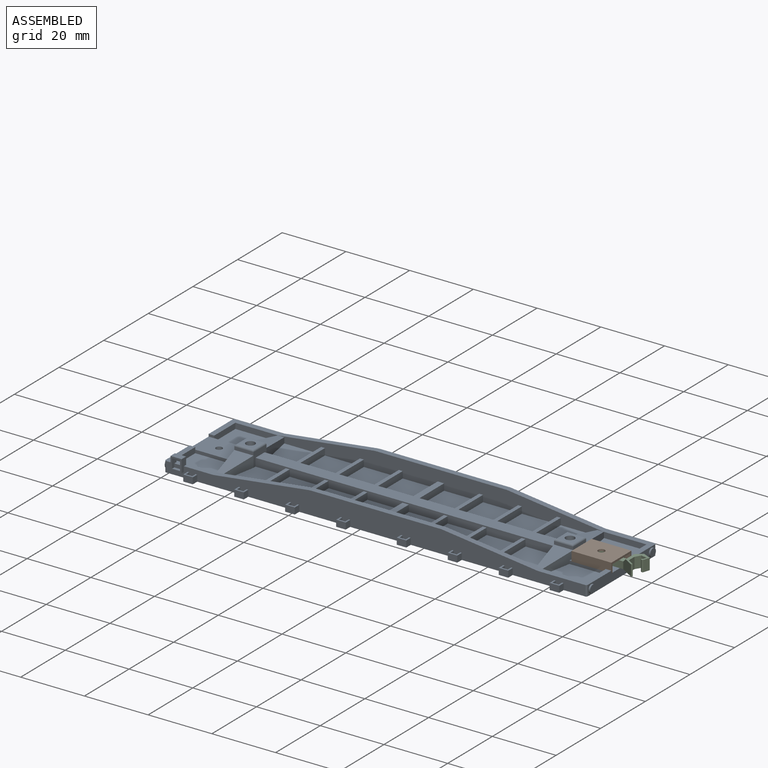
[diagram: assembled view]
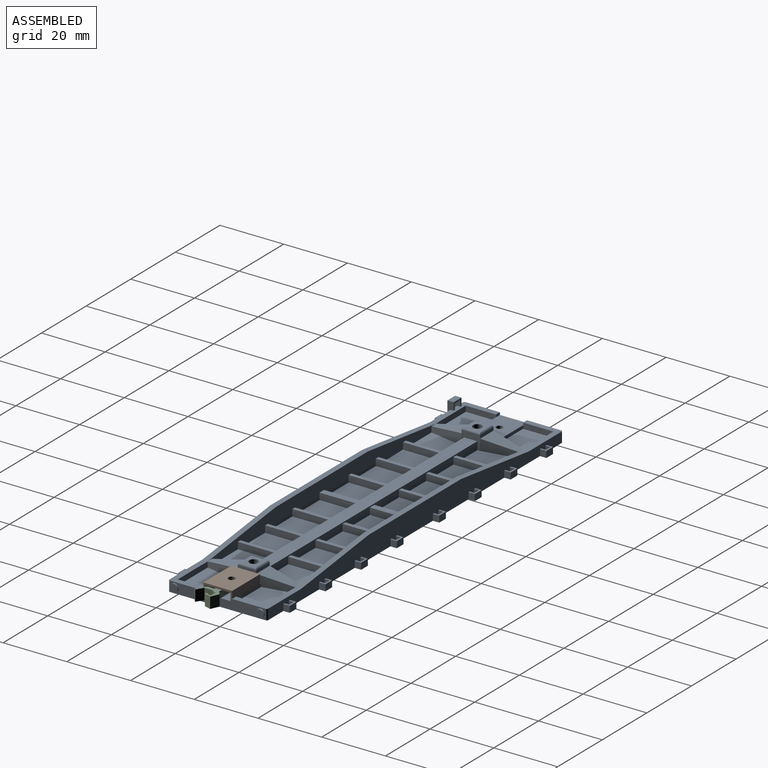
[diagram: assembled view, second angle]
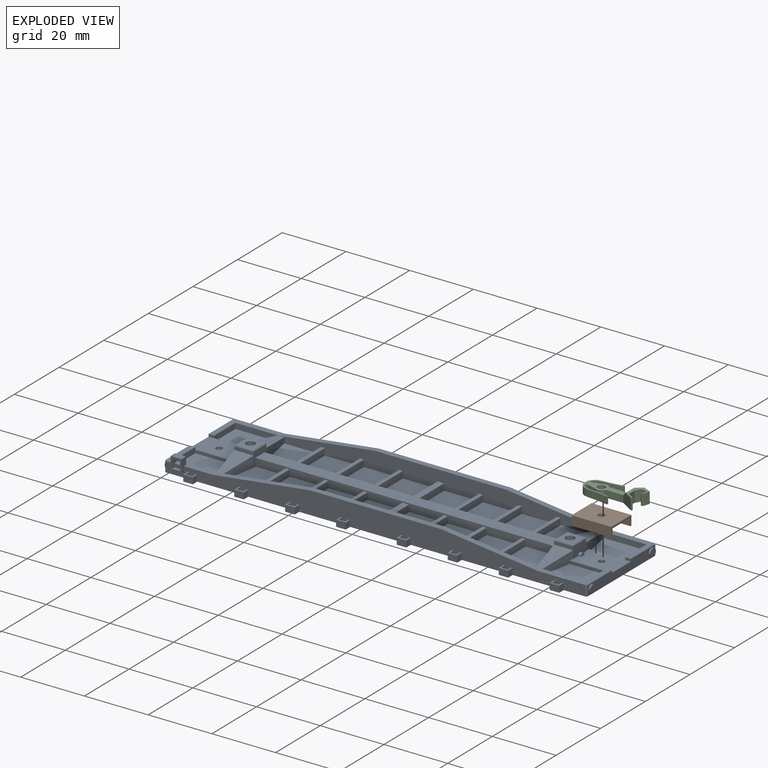
[diagram: exploded view]
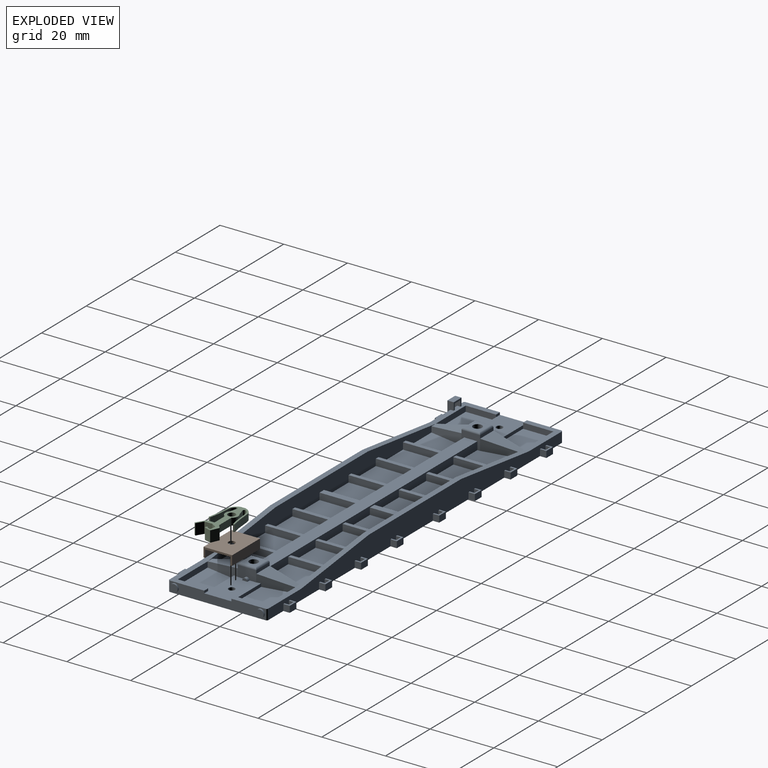
[diagram: exploded view, second angle]
ASSEMBLY  parts=3 mates=2
PART A: 281 faces, bbox 133.5x35x7 mm
  f0: plane 2.5x1.13mm, normal (0,-1,0), area 2.8mm2, adj f1,f272,f275,f276
  f1: plane 14.68x11.25mm, normal (0,0,1), area 41.3mm2, adj f0,f3,f10,f22,f25,f27,f244,f248
  f2: plane 5.83x3.4mm, normal (1,0,0), area 18.8mm2, adj f5,f63,f64,f65,f119,f251,f258
  f3: plane 131.5x7mm, normal (0,-1,0), area 674.2mm2, adj f1,f16,f20,f60,f115,f118,f183,f185
  f4: plane 131.5x7mm, normal (0,1,0), area 679.9mm2, adj f14,f20,f23,f55,f116,f117,f127,f129
  f5: plane 10.84x3.45mm, normal (0.98,-0.18,0), area 27.3mm2, adj f2,f15,f58,f61,f63,f125
  f6: plane 10.84x3.45mm, normal (-0.98,-0.18,0), area 28.7mm2, adj f9,f42,f50,f125
  f7: plane 10.84x3.45mm, normal (-0.98,0.18,0), area 27.3mm2, adj f12,f19,f24,f30,f31,f124
  f8: plane 10.84x3.45mm, normal (0.98,0.18,0), area 28.7mm2, adj f11,f32,f69,f124
  f9: plane 103.13x5.5mm, normal (0,1,0), area 421.2mm2, adj f6,f10,f15,f16,f41,f42,f43,f44
  f10: plane 13.35x1.75mm, normal (0,1,0), area 23.4mm2, adj f1,f9,f26,f27,f121
  f11: plane 103.13x5.5mm, normal (0,-1,0), area 421.2mm2, adj f8,f12,f13,f14,f32,f34,f35,f36
  f12: plane 13.35x1.75mm, normal (0,-1,0), area 23.4mm2, adj f7,f11,f19,f21,f23
  f13: plane 13.35x1.75mm, normal (0,-1,0), area 23.4mm2, adj f11,f52,f53,f55,f119
  f14: plane 40.7x1.75mm, normal (0,0,1), area 71.2mm2, adj f4,f11,f117,f239
  f15: plane 13.35x1.75mm, normal (0,1,0), area 23.4mm2, adj f5,f9,f58,f59,f60
  f16: plane 40.7x1.75mm, normal (0,0,1), area 71.2mm2, adj f3,f9,f118,f240
  f17: plane 94.3x2.5mm, normal (0,-1,0), area 216.4mm2, adj f41,f42,f43,f44,f45,f46,f47,f48
  f18: plane 1.75x0.75mm, normal (0,-1,0), area 1.3mm2, adj f21,f22,f23,f30
  f19: plane 13.35x9.5mm, normal (0,0,1), area 118.5mm2, adj f7,f12,f21,f24
  f20: plane 132.5x35mm, normal (0,0,-1), area 4149mm2, adj f3,f4,f22,f29,f54,f62,f127,f128
  f21: plane 9.5x1.75mm, normal (1,0,0), area 16.6mm2, adj f12,f18,f19,f23,f24
  f22: plane 30x3.25mm, normal (-1,0,0), area 81.3mm2, adj f1,f18,f20,f23,f25,f30,f247,f248
  f23: plane 14.68x11.25mm, normal (0,0,1), area 42.3mm2, adj f4,f12,f18,f21,f22,f243,f247
  f24: plane 11.6x1mm, normal (0,1,0), area 11.6mm2, adj f7,f19,f21,f30
  f25: plane 1.75x0.75mm, normal (0,1,0), area 1.3mm2, adj f1,f22,f27,f30
  f26: plane 13.35x9.5mm, normal (0,0,1), area 118.5mm2, adj f10,f27,f28,f121
  f27: plane 9.5x1.75mm, normal (1,0,0), area 16.6mm2, adj f1,f10,f25,f26,f28
  f28: plane 11.6x1mm, normal (0,-1,0), area 11.6mm2, adj f26,f27,f30,f121
  f29: cylinder r=1mm len=2.5mm, axis (0,0,-1), area 15.7mm2, adj f20,f30
  f30: plane 13.35x8.5mm, normal (0,0,1), area 106.9mm2, adj f7,f18,f22,f24,f25,f28,f29,f31
  f31: plane 5.83x3.4mm, normal (-1,0,0), area 18.8mm2, adj f7,f30,f68,f70,f121,f249,f262
  f32: plane 11.7x11.55mm, normal (0,0,1), area 122.6mm2, adj f8,f11,f33,f69,f76
  f33: plane 94.3x2.5mm, normal (0,1,0), area 216.4mm2, adj f32,f34,f35,f36,f37,f38,f39,f40
  f34: plane 11.7x11mm, normal (0,0,1), area 128.7mm2, adj f11,f33,f73,f77
  f35: plane 11.7x11mm, normal (0,0,1), area 128.7mm2, adj f11,f33,f74,f80
  f36: plane 11.7x11mm, normal (0,0,1), area 128.7mm2, adj f11,f33,f79,f83
  f37: plane 11.7x11.55mm, normal (0,0,1), area 122.6mm2, adj f11,f33,f50,f91,f120
  f38: plane 11.7x11mm, normal (0,0,1), area 128.7mm2, adj f11,f33,f82,f86
  f39: plane 11.7x11mm, normal (0,0,1), area 128.7mm2, adj f11,f33,f85,f89
  f40: plane 11.7x11mm, normal (0,0,1), area 128.7mm2, adj f11,f33,f88,f92
  f41: plane 11.7x11.55mm, normal (0,0,1), area 122.6mm2, adj f9,f17,f69,f112,f122
  f42: plane 11.7x11.55mm, normal (0,0,1), area 122.6mm2, adj f6,f9,f17,f50,f106
  f43: plane 11.7x11mm, normal (0,0,1), area 128.7mm2, adj f9,f17,f103,f107
  f44: plane 11.7x11mm, normal (0,0,1), area 128.7mm2, adj f9,f17,f100,f104
  f45: plane 11.7x11mm, normal (0,0,1), area 128.7mm2, adj f9,f17,f109,f113
  f46: plane 11.7x11mm, normal (0,0,1), area 128.7mm2, adj f9,f17,f97,f110
  f47: plane 11.7x11mm, normal (0,0,1), area 128.7mm2, adj f9,f17,f94,f101
  f48: plane 11.7x11mm, normal (0,0,1), area 128.7mm2, adj f9,f17,f95,f98
  f49: plane 94.3x4.1mm, normal (0,0,1), area 386.6mm2, adj f17,f33,f50,f69
  f50: plane 5.83x4.4mm, normal (-1,0,0), area 15.4mm2, adj f6,f17,f33,f37,f42,f49,f64,f65
  f51: plane 1.75x0.75mm, normal (0,-1,0), area 1.3mm2, adj f53,f54,f55,f63
  f52: plane 13.35x9.5mm, normal (0,0,1), area 118.5mm2, adj f13,f53,f56,f119
  f53: plane 9.5x1.75mm, normal (-1,0,0), area 16.6mm2, adj f13,f51,f52,f55,f56
  f54: plane 30x3.25mm, normal (1,0,0), area 81.3mm2, adj f20,f51,f55,f57,f60,f63,f245,f246
  f55: plane 14.68x11.25mm, normal (0,0,1), area 42.3mm2, adj f4,f13,f51,f53,f54,f242,f246
  f56: plane 11.6x1mm, normal (0,1,0), area 11.6mm2, adj f52,f53,f63,f119
  f57: plane 1.75x0.75mm, normal (0,1,0), area 1.3mm2, adj f54,f59,f60,f63
  f58: plane 13.35x9.5mm, normal (0,0,1), area 118.5mm2, adj f5,f15,f59,f61
  f59: plane 9.5x1.75mm, normal (-1,0,0), area 16.6mm2, adj f15,f57,f58,f60,f61
  f60: plane 14.68x11.25mm, normal (0,0,1), area 42.3mm2, adj f3,f15,f54,f57,f59,f241,f245
  f61: plane 11.6x1mm, normal (0,-1,0), area 11.6mm2, adj f5,f58,f59,f63
  f62: cylinder r=1mm len=2.5mm, axis (0,0,-1), area 15.7mm2, adj f20,f63
  f63: plane 13.35x8.5mm, normal (0,0,1), area 106.9mm2, adj f2,f5,f51,f54,f56,f57,f61,f62
  f64: plane 6x0.95mm, normal (0,-1,0), area 5.7mm2, adj f2,f50,f125,f257
  f65: plane 6x0.95mm, normal (0,1,0), area 5.7mm2, adj f2,f50,f126,f256
  f66: cylinder r=1.4mm len=5.5mm, axis (0,0,-1), area 48.4mm2, adj f67,f254
  f67: plane 4.8x4.63mm, normal (0,0,1), area 16.1mm2, adj f66,f255,f256,f257,f258
  f68: plane 6x0.95mm, normal (0,-1,0), area 5.7mm2, adj f31,f69,f123,f261
  f69: plane 5.83x4.4mm, normal (1,0,0), area 15.4mm2, adj f8,f17,f32,f33,f41,f49,f68,f70
  f70: plane 6x0.95mm, normal (0,1,0), area 5.7mm2, adj f31,f69,f124,f260
  f71: cylinder r=1.4mm len=5.5mm, axis (0,0,-1), area 48.4mm2, adj f72,f253
  f72: plane 4.8x4.63mm, normal (0,0,1), area 16.1mm2, adj f71,f259,f260,f261,f262
  f73: plane 11.7x2.1mm, normal (-1,0,0), area 24.6mm2, adj f11,f33,f34,f75
  f74: plane 11.7x2.1mm, normal (1,0,0), area 24.6mm2, adj f11,f33,f35,f75
  f75: plane 11.7x1.2mm, normal (0,0,1), area 14mm2, adj f11,f33,f73,f74
  f76: plane 11.7x2.1mm, normal (-1,0,0), area 24.6mm2, adj f11,f32,f33,f78
  f77: plane 11.7x2.1mm, normal (1,0,0), area 24.6mm2, adj f11,f33,f34,f78
  f78: plane 11.7x1.2mm, normal (0,0,1), area 14mm2, adj f11,f33,f76,f77
  f79: plane 11.7x2.1mm, normal (1,0,0), area 24.6mm2, adj f11,f33,f36,f81
  f80: plane 11.7x2.1mm, normal (-1,0,0), area 24.6mm2, adj f11,f33,f35,f81
  f81: plane 11.7x1.2mm, normal (0,0,1), area 14mm2, adj f11,f33,f79,f80
  f82: plane 11.7x2.1mm, normal (1,0,0), area 24.6mm2, adj f11,f33,f38,f84
  f83: plane 11.7x2.1mm, normal (-1,0,0), area 24.6mm2, adj f11,f33,f36,f84
  f84: plane 11.7x2mm, normal (0,0,1), area 23.4mm2, adj f11,f33,f82,f83
  f85: plane 11.7x2.1mm, normal (1,0,0), area 24.6mm2, adj f11,f33,f39,f87
  f86: plane 11.7x2.1mm, normal (-1,0,0), area 24.6mm2, adj f11,f33,f38,f87
  f87: plane 11.7x1.2mm, normal (0,0,1), area 14mm2, adj f11,f33,f85,f86
  f88: plane 11.7x2.1mm, normal (1,0,0), area 24.6mm2, adj f11,f33,f40,f90
  f89: plane 11.7x2.1mm, normal (-1,0,0), area 24.6mm2, adj f11,f33,f39,f90
  f90: plane 11.7x1.2mm, normal (0,0,1), area 14mm2, adj f11,f33,f88,f89
  f91: plane 11.7x2.1mm, normal (1,0,0), area 24.6mm2, adj f11,f33,f37,f93
  f92: plane 11.7x2.1mm, normal (-1,0,0), area 24.6mm2, adj f11,f33,f40,f93
  f93: plane 11.7x1.2mm, normal (0,0,1), area 14mm2, adj f11,f33,f91,f92
  f94: plane 11.7x2.1mm, normal (1,0,0), area 24.6mm2, adj f9,f17,f47,f96
  f95: plane 11.7x2.1mm, normal (-1,0,0), area 24.6mm2, adj f9,f17,f48,f96
  f96: plane 11.7x2mm, normal (0,0,1), area 23.4mm2, adj f9,f17,f94,f95
  f97: plane 11.7x2.1mm, normal (-1,0,0), area 24.6mm2, adj f9,f17,f46,f99
  f98: plane 11.7x2.1mm, normal (1,0,0), area 24.6mm2, adj f9,f17,f48,f99
  f99: plane 11.7x1.2mm, normal (0,0,1), area 14mm2, adj f9,f17,f97,f98
  f100: plane 11.7x2.1mm, normal (1,0,0), area 24.6mm2, adj f9,f17,f44,f102
  f101: plane 11.7x2.1mm, normal (-1,0,0), area 24.6mm2, adj f9,f17,f47,f102
  f102: plane 11.7x1.2mm, normal (0,0,1), area 14mm2, adj f9,f17,f100,f101
  f103: plane 11.7x2.1mm, normal (1,0,0), area 24.6mm2, adj f9,f17,f43,f105
  f104: plane 11.7x2.1mm, normal (-1,0,0), area 24.6mm2, adj f9,f17,f44,f105
  f105: plane 11.7x1.2mm, normal (0,0,1), area 14mm2, adj f9,f17,f103,f104
  f106: plane 11.7x2.1mm, normal (1,0,0), area 24.6mm2, adj f9,f17,f42,f108
  f107: plane 11.7x2.1mm, normal (-1,0,0), area 24.6mm2, adj f9,f17,f43,f108
  f108: plane 11.7x1.2mm, normal (0,0,1), area 14mm2, adj f9,f17,f106,f107
  f109: plane 11.7x2.1mm, normal (-1,0,0), area 24.6mm2, adj f9,f17,f45,f111
  f110: plane 11.7x2.1mm, normal (1,0,0), area 24.6mm2, adj f9,f17,f46,f111
  f111: plane 11.7x1.2mm, normal (0,0,1), area 14mm2, adj f9,f17,f109,f110
  f112: plane 11.7x2.1mm, normal (-1,0,0), area 24.6mm2, adj f9,f17,f41,f114
  f113: plane 11.7x2.1mm, normal (1,0,0), area 24.6mm2, adj f9,f17,f45,f114
  f114: plane 11.7x1.2mm, normal (0,0,1), area 14mm2, adj f9,f17,f112,f113
  f115: plane 29.06x3.6mm, normal (-0.12,0,0.99), area 51.2mm2, adj f3,f9,f240,f244
  f116: plane 29.06x3.6mm, normal (-0.12,0,0.99), area 51.2mm2, adj f4,f11,f239,f243
  f117: plane 29.69x3.67mm, normal (0.12,0,0.99), area 52.4mm2, adj f4,f11,f14,f242
  f118: plane 29.69x3.67mm, normal (0.12,0,0.99), area 52.4mm2, adj f3,f9,f16,f241
  f119: plane 10.84x3.45mm, normal (0.98,0.18,0), area 27.3mm2, adj f2,f13,f52,f56,f63,f126
  f120: plane 10.84x3.45mm, normal (-0.98,0.18,0), area 28.7mm2, adj f11,f37,f50,f126
  f121: plane 10.84x3.45mm, normal (-0.98,-0.18,0), area 27.3mm2, adj f10,f26,f28,f30,f31,f123
  f122: plane 10.84x3.45mm, normal (0.98,-0.18,0), area 28.7mm2, adj f9,f41,f69,f123
  f123: plane 10.84x6mm, normal (0,-0.16,0.99), area 43.9mm2, adj f9,f68,f121,f122
  f124: plane 10.84x6mm, normal (0,0.16,0.99), area 43.9mm2, adj f7,f8,f11,f70
  f125: plane 10.84x6mm, normal (0,-0.16,0.99), area 43.9mm2, adj f5,f6,f9,f64
  f126: plane 10.84x6mm, normal (0,0.16,0.99), area 43.9mm2, adj f11,f65,f119,f120
  f127: plane 2x1.5mm, normal (1,0,0), area 3mm2, adj f4,f20,f128,f133
  f128: plane 2x2mm, normal (0,-1,0), area 4mm2, adj f20,f127,f129,f133
  f129: plane 2x1.5mm, normal (-1,0,0), area 3mm2, adj f4,f20,f128,f133
  f130: plane 2x2mm, normal (1,0,0), area 4mm2, adj f4,f20,f131,f133
  f131: plane 3x2mm, normal (0,1,0), area 6mm2, adj f20,f130,f132,f133
  f132: plane 2x2mm, normal (-1,0,0), area 4mm2, adj f4,f20,f131,f133
  f133: plane 3x2mm, normal (0,0,1), area 3mm2, adj f4,f127,f128,f129,f130,f131,f132
  f134: plane 2x1.5mm, normal (1,0,0), area 3mm2, adj f4,f20,f135,f140
  f135: plane 2x2mm, normal (0,-1,0), area 4mm2, adj f20,f134,f136,f140
  f136: plane 2x1.5mm, normal (-1,0,0), area 3mm2, adj f4,f20,f135,f140
  f137: plane 2x2mm, normal (1,0,0), area 4mm2, adj f4,f20,f138,f140
  f138: plane 3x2mm, normal (0,1,0), area 6mm2, adj f20,f137,f139,f140
  f139: plane 2x2mm, normal (-1,0,0), area 4mm2, adj f4,f20,f138,f140
  f140: plane 3x2mm, normal (0,0,1), area 3mm2, adj f4,f134,f135,f136,f137,f138,f139
  f141: plane 2x1.5mm, normal (1,0,0), area 3mm2, adj f4,f20,f142,f147
  f142: plane 2x2mm, normal (0,-1,0), area 4mm2, adj f20,f141,f143,f147
  f143: plane 2x1.5mm, normal (-1,0,0), area 3mm2, adj f4,f20,f142,f147
  f144: plane 2x2mm, normal (1,0,0), area 4mm2, adj f4,f20,f145,f147
  f145: plane 3x2mm, normal (0,1,0), area 6mm2, adj f20,f144,f146,f147
  f146: plane 2x2mm, normal (-1,0,0), area 4mm2, adj f4,f20,f145,f147
  f147: plane 3x2mm, normal (0,0,1), area 3mm2, adj f4,f141,f142,f143,f144,f145,f146
  f148: plane 2x1.5mm, normal (1,0,0), area 3mm2, adj f4,f20,f149,f154
  f149: plane 2x2mm, normal (0,-1,0), area 4mm2, adj f20,f148,f150,f154
  f150: plane 2x1.5mm, normal (-1,0,0), area 3mm2, adj f4,f20,f149,f154
  f151: plane 2x2mm, normal (1,0,0), area 4mm2, adj f4,f20,f152,f154
  f152: plane 3x2mm, normal (0,1,0), area 6mm2, adj f20,f151,f153,f154
  f153: plane 2x2mm, normal (-1,0,0), area 4mm2, adj f4,f20,f152,f154
  f154: plane 3x2mm, normal (0,0,1), area 3mm2, adj f4,f148,f149,f150,f151,f152,f153
  f155: plane 2x2mm, normal (1,0,0), area 4mm2, adj f4,f20,f156,f161
  f156: plane 3x2mm, normal (0,1,0), area 6mm2, adj f20,f155,f157,f161
  f157: plane 2x2mm, normal (-1,0,0), area 4mm2, adj f4,f20,f156,f161
  f158: plane 2x1.5mm, normal (1,0,0), area 3mm2, adj f4,f20,f159,f161
  f159: plane 2x2mm, normal (0,-1,0), area 4mm2, adj f20,f158,f160,f161
  f160: plane 2x1.5mm, normal (-1,0,0), area 3mm2, adj f4,f20,f159,f161
  f161: plane 3x2mm, normal (0,0,1), area 3mm2, adj f4,f155,f156,f157,f158,f159,f160
  f162: plane 2x2mm, normal (1,0,0), area 4mm2, adj f4,f20,f163,f168
  f163: plane 3x2mm, normal (0,1,0), area 6mm2, adj f20,f162,f164,f168
  f164: plane 2x2mm, normal (-1,0,0), area 4mm2, adj f4,f20,f163,f168
  f165: plane 2x1.5mm, normal (1,0,0), area 3mm2, adj f4,f20,f166,f168
  f166: plane 2x2mm, normal (0,-1,0), area 4mm2, adj f20,f165,f167,f168
  f167: plane 2x1.5mm, normal (-1,0,0), area 3mm2, adj f4,f20,f166,f168
  f168: plane 3x2mm, normal (0,0,1), area 3mm2, adj f4,f162,f163,f164,f165,f166,f167
  f169: plane 2x1.5mm, normal (1,0,0), area 3mm2, adj f4,f20,f170,f175
  f170: plane 2x2mm, normal (0,-1,0), area 4mm2, adj f20,f169,f171,f175
  f171: plane 2x1.5mm, normal (-1,0,0), area 3mm2, adj f4,f20,f170,f175
  f172: plane 2x2mm, normal (1,0,0), area 4mm2, adj f4,f20,f173,f175
  f173: plane 3x2mm, normal (0,1,0), area 6mm2, adj f20,f172,f174,f175
  f174: plane 2x2mm, normal (-1,0,0), area 4mm2, adj f4,f20,f173,f175
  f175: plane 3x2mm, normal (0,0,1), area 3mm2, adj f4,f169,f170,f171,f172,f173,f174
  f176: plane 2x1.5mm, normal (1,0,0), area 3mm2, adj f4,f20,f177,f182
  f177: plane 2x2mm, normal (0,-1,0), area 4mm2, adj f20,f176,f178,f182
  f178: plane 2x1.5mm, normal (-1,0,0), area 3mm2, adj f4,f20,f177,f182
  f179: plane 2x2mm, normal (1,0,0), area 4mm2, adj f4,f20,f180,f182
  f180: plane 3x2mm, normal (0,1,0), area 6mm2, adj f20,f179,f181,f182
  f181: plane 2x2mm, normal (-1,0,0), area 4mm2, adj f4,f20,f180,f182
  f182: plane 3x2mm, normal (0,0,1), area 3mm2, adj f4,f176,f177,f178,f179,f180,f181
  f183: plane 2x2mm, normal (-1,0,0), area 4mm2, adj f3,f20,f184,f189
  f184: plane 3x2mm, normal (0,-1,0), area 6mm2, adj f20,f183,f185,f189
  f185: plane 2x2mm, normal (1,0,0), area 4mm2, adj f3,f20,f184,f189
  f186: plane 2x1.5mm, normal (-1,0,0), area 3mm2, adj f3,f20,f187,f189
  f187: plane 2x2mm, normal (0,1,0), area 4mm2, adj f20,f186,f188,f189
  f188: plane 2x1.5mm, normal (1,0,0), area 3mm2, adj f3,f20,f187,f189
  f189: plane 3x2mm, normal (0,0,1), area 3mm2, adj f3,f183,f184,f185,f186,f187,f188
  f190: plane 2x2mm, normal (1,0,0), area 4mm2, adj f3,f20,f195,f196
  f191: plane 2x1.5mm, normal (-1,0,0), area 3mm2, adj f3,f20,f192,f196
  f192: plane 2x2mm, normal (0,1,0), area 4mm2, adj f20,f191,f193,f196
  f193: plane 2x1.5mm, normal (1,0,0), area 3mm2, adj f3,f20,f192,f196
  f194: plane 2x2mm, normal (-1,0,0), area 4mm2, adj f3,f20,f195,f196
  f195: plane 3x2mm, normal (0,-1,0), area 6mm2, adj f20,f190,f194,f196
  f196: plane 3x2mm, normal (0,0,1), area 3mm2, adj f3,f190,f191,f192,f193,f194,f195
  f197: plane 2x2mm, normal (-1,0,0), area 4mm2, adj f3,f20,f198,f203
  f198: plane 3x2mm, normal (0,-1,0), area 6mm2, adj f20,f197,f199,f203
  f199: plane 2x2mm, normal (1,0,0), area 4mm2, adj f3,f20,f198,f203
  f200: plane 2x1.5mm, normal (-1,0,0), area 3mm2, adj f3,f20,f201,f203
  f201: plane 2x2mm, normal (0,1,0), area 4mm2, adj f20,f200,f202,f203
  f202: plane 2x1.5mm, normal (1,0,0), area 3mm2, adj f3,f20,f201,f203
  f203: plane 3x2mm, normal (0,0,1), area 3mm2, adj f3,f197,f198,f199,f200,f201,f202
  f204: plane 2x2mm, normal (-1,0,0), area 4mm2, adj f3,f20,f205,f210
  f205: plane 3x2mm, normal (0,-1,0), area 6mm2, adj f20,f204,f206,f210
  f206: plane 2x2mm, normal (1,0,0), area 4mm2, adj f3,f20,f205,f210
  f207: plane 2x1.5mm, normal (-1,0,0), area 3mm2, adj f3,f20,f208,f210
  f208: plane 2x2mm, normal (0,1,0), area 4mm2, adj f20,f207,f209,f210
  f209: plane 2x1.5mm, normal (1,0,0), area 3mm2, adj f3,f20,f208,f210
  f210: plane 3x2mm, normal (0,0,1), area 3mm2, adj f3,f204,f205,f206,f207,f208,f209
  f211: plane 2x1.5mm, normal (-1,0,0), area 3mm2, adj f3,f20,f212,f217
  f212: plane 2x2mm, normal (0,1,0), area 4mm2, adj f20,f211,f213,f217
  f213: plane 2x1.5mm, normal (1,0,0), area 3mm2, adj f3,f20,f212,f217
  f214: plane 2x2mm, normal (-1,0,0), area 4mm2, adj f3,f20,f215,f217
  f215: plane 3x2mm, normal (0,-1,0), area 6mm2, adj f20,f214,f216,f217
  f216: plane 2x2mm, normal (1,0,0), area 4mm2, adj f3,f20,f215,f217
  f217: plane 3x2mm, normal (0,0,1), area 3mm2, adj f3,f211,f212,f213,f214,f215,f216
  f218: plane 2x1.5mm, normal (-1,0,0), area 3mm2, adj f3,f20,f219,f224
  f219: plane 2x2mm, normal (0,1,0), area 4mm2, adj f20,f218,f220,f224
  f220: plane 2x1.5mm, normal (1,0,0), area 3mm2, adj f3,f20,f219,f224
  f221: plane 2x2mm, normal (-1,0,0), area 4mm2, adj f3,f20,f222,f224
  f222: plane 3x2mm, normal (0,-1,0), area 6mm2, adj f20,f221,f223,f224
  f223: plane 2x2mm, normal (1,0,0), area 4mm2, adj f3,f20,f222,f224
  f224: plane 3x2mm, normal (0,0,1), area 3mm2, adj f3,f218,f219,f220,f221,f222,f223
  f225: plane 2x2mm, normal (0,1,0), area 4mm2, adj f20,f226,f230,f231
  f226: plane 2x1.5mm, normal (1,0,0), area 3mm2, adj f3,f20,f225,f231
  f227: plane 2x2mm, normal (-1,0,0), area 4mm2, adj f3,f20,f228,f231
  f228: plane 3x2mm, normal (0,-1,0), area 6mm2, adj f20,f227,f229,f231
  f229: plane 2x2mm, normal (1,0,0), area 4mm2, adj f3,f20,f228,f231
  f230: plane 2x1.5mm, normal (-1,0,0), area 3mm2, adj f3,f20,f225,f231
  f231: plane 3x2mm, normal (0,0,1), area 3mm2, adj f3,f225,f226,f227,f228,f229,f230
  f232: plane 2x2mm, normal (-1,0,0), area 4mm2, adj f3,f20,f233,f238
  f233: plane 3x2mm, normal (0,-1,0), area 6mm2, adj f20,f232,f234,f238
  f234: plane 2x2mm, normal (1,0,0), area 4mm2, adj f3,f20,f233,f238
  f235: plane 2x1.5mm, normal (-1,0,0), area 3mm2, adj f3,f20,f236,f238
  f236: plane 2x2mm, normal (0,1,0), area 4mm2, adj f20,f235,f237,f238
  f237: plane 2x1.5mm, normal (1,0,0), area 3mm2, adj f3,f20,f236,f238
  f238: plane 3x2mm, normal (0,0,1), area 3mm2, adj f3,f232,f233,f234,f235,f236,f237
  f239: cylinder r=10mm len=1.75mm, axis (0,1,0), area 2.2mm2, adj f4,f11,f14,f116
  f240: cylinder r=10mm len=1.75mm, axis (0,1,0), area 2.2mm2, adj f3,f9,f16,f115
  f241: cylinder r=10mm len=1.75mm, axis (0,-1,0), area 2.2mm2, adj f3,f9,f60,f118
  f242: cylinder r=10mm len=1.75mm, axis (0,-1,0), area 2.2mm2, adj f4,f11,f55,f117
  f243: cylinder r=10mm len=1.75mm, axis (0,1,0), area 2.2mm2, adj f4,f11,f23,f116
  f244: cylinder r=10mm len=1.75mm, axis (0,1,0), area 2.2mm2, adj f1,f3,f9,f115
  f245: cylinder r=0.5mm len=3.25mm, axis (0,0,1), area 2.6mm2, adj f3,f20,f54,f60
  f246: cylinder r=0.5mm len=3.25mm, axis (0,0,1), area 2.6mm2, adj f4,f20,f54,f55
  f247: cylinder r=0.5mm len=3.25mm, axis (0,0,1), area 2.6mm2, adj f4,f20,f22,f23
  f248: cylinder r=0.5mm len=3.25mm, axis (0,0,1), area 2.6mm2, adj f1,f3,f20,f22
  f249: cylinder r=0.8mm len=1.6mm, axis (1,0,0), area 2.5mm2, adj f30,f31,f250
  f250: plane 1.6x0.8mm, normal (-1,0,0), area 1mm2, adj f30,f249
  f251: cylinder r=0.8mm len=1.6mm, axis (-1,0,0), area 2.5mm2, adj f2,f63,f252
  f252: plane 1.6x0.8mm, normal (1,0,0), area 1mm2, adj f63,f251
  f253: plane 2.8x2.8mm, normal (0,0,1), area 6.2mm2, adj f71
  f254: plane 2.8x2.8mm, normal (0,0,1), area 6.2mm2, adj f66
  f255: cylinder r=0.6mm len=5.83mm, axis (0,1,0), area 5.1mm2, adj f50,f67,f256,f257
  f256: cylinder r=0.6mm len=6mm, axis (1,0,0), area 5.2mm2, adj f65,f67,f255,f258
  f257: cylinder r=0.6mm len=6mm, axis (-1,0,0), area 5.2mm2, adj f64,f67,f255,f258
  f258: cylinder r=0.6mm len=5.83mm, axis (0,-1,0), area 5.1mm2, adj f2,f67,f256,f257
  f259: cylinder r=0.6mm len=5.83mm, axis (0,-1,0), area 5.1mm2, adj f69,f72,f260,f261
  f260: cylinder r=0.6mm len=6mm, axis (1,0,0), area 5.2mm2, adj f70,f72,f259,f262
  f261: cylinder r=0.6mm len=6mm, axis (-1,0,0), area 5.2mm2, adj f68,f72,f259,f262
  f262: cylinder r=0.6mm len=5.83mm, axis (0,1,0), area 5.1mm2, adj f31,f72,f260,f261
  f263: cylinder r=1.25mm len=2.5mm, axis (-1,0,0), area 3.9mm2, adj f54,f264
  f264: plane 2.5x2.5mm, normal (1,0,0), area 4.9mm2, adj f263
  f265: cylinder r=1.25mm len=2.5mm, axis (-1,0,0), area 3.9mm2, adj f54,f266
  f266: plane 2.5x2.5mm, normal (1,0,0), area 4.9mm2, adj f265
  f267: cylinder r=1.25mm len=2.5mm, axis (1,0,0), area 3.9mm2, adj f22,f268
  f268: plane 2.5x2.5mm, normal (-1,0,0), area 4.9mm2, adj f267
  f269: cylinder r=1.25mm len=2.5mm, axis (1,0,0), area 3.9mm2, adj f22,f270
  f270: plane 2.5x2.5mm, normal (-1,0,0), area 4.9mm2, adj f269
  f271: plane 3.5x1mm, normal (0,0,-1), area 3.5mm2, adj f3,f273,f274,f279
  f272: plane 2.5x1mm, normal (0,0,1), area 2.5mm2, adj f0,f275,f276,f279
  f273: plane 4x2mm, normal (-1,0,0), area 6.4mm2, adj f1,f3,f271,f278,f279,f280
  f274: plane 4x2mm, normal (1,0,0), area 6.4mm2, adj f1,f3,f271,f278,f279,f280
  f275: plane 3x2mm, normal (1,0,0), area 4.9mm2, adj f0,f1,f272,f277,f279,f280
  f276: plane 3x2mm, normal (-1,0,0), area 4.9mm2, adj f0,f1,f272,f277,f279,f280
  f277: plane 2.5x2mm, normal (0,0,-1), area 5mm2, adj f275,f276,f279,f280
  f278: plane 3.5x2mm, normal (0,0,1), area 7mm2, adj f273,f274,f279,f280
  f279: plane 4x3.5mm, normal (0,-1,0), area 6.5mm2, adj f271,f272,f273,f274,f275,f276,f277,f278
  f280: plane 3.5x2.38mm, normal (0,1,0), area 3.6mm2, adj f1,f273,f274,f275,f276,f277,f278
PART B: 13 faces, bbox 12.5x9x3 mm
  f0: plane 12.5x3.5mm, normal (0,0,1), area 7.7mm2, adj f1,f2,f3,f7,f9,f12
  f1: plane 8x2.4mm, normal (1,0,0), area 17.6mm2, adj f0,f4,f6,f7,f10,f12
  f2: plane 9x3mm, normal (-1,0,0), area 25.4mm2, adj f0,f5,f8,f9,f10,f12
  f3: plane 9x3mm, normal (1,0,0), area 7.8mm2, adj f0,f4,f5,f6,f7,f8,f9,f10
  f4: plane 12x8mm, normal (0,0,1), area 92.5mm2, adj f1,f3,f6,f7,f11
  f5: plane 12.5x9mm, normal (0,0,-1), area 109mm2, adj f2,f3,f8,f9,f11
  f6: plane 12x2.4mm, normal (0,-1,0), area 28.8mm2, adj f1,f3,f4,f10
  f7: plane 12x2.4mm, normal (0,1,0), area 28.8mm2, adj f0,f1,f3,f4
  f8: plane 12.5x3mm, normal (0,1,0), area 37.5mm2, adj f2,f3,f5,f10
  f9: plane 12.5x3mm, normal (0,-1,0), area 37.5mm2, adj f0,f2,f3,f5
  f10: plane 12.5x3.5mm, normal (0,0,1), area 7.8mm2, adj f1,f2,f3,f6,f8,f12
  f11: cylinder r=1.05mm len=2.1mm, axis (0,0,-1), area 4mm2, adj f4,f5
  f12: cylinder r=1mm len=2mm, axis (-1,0,0), area 1.6mm2, adj f0,f1,f2,f10
PART C: 32 faces, bbox 18.6x8.1x3.5 mm
  f0: extruded ~8.69x2.2mm, area 19.9mm2, adj f1,f13,f15,f16
  f1: cylinder r=0.5mm len=2.2mm, axis (0,0,-1), area 2.8mm2, adj f0,f2,f15,f16
  f2: extruded ~2.28x2.2mm, area 5.2mm2, adj f1,f3,f15,f16
  f3: cylinder r=2mm len=3.07mm, axis (0,0,-1), area 8mm2, adj f2,f4,f15,f16
  f4: plane 5.65x2.2mm, normal (0,-1,0), area 12.4mm2, adj f3,f15,f16,f18
  f5: plane 5.76x2.2mm, normal (0,1,0), area 12.7mm2, adj f6,f15,f16,f30
  f6: cylinder r=2mm len=2.96mm, axis (0,0,-1), area 7.5mm2, adj f5,f7,f15,f16
  f7: extruded ~2.28x2.2mm, area 5.2mm2, adj f6,f8,f15,f16
  f8: cylinder r=0.5mm len=2.2mm, axis (0,0,-1), area 2.8mm2, adj f7,f9,f15,f16
  f9: extruded ~8.69x2.2mm, area 19.9mm2, adj f8,f10,f15,f16
  f10: plane 2.2x0.49mm, normal (0.98,0.19,0), area 1.1mm2, adj f9,f11,f15,f16
  f11: extruded ~9.66x4.06mm, area 25.5mm2, adj f10,f12,f15,f16
  f12: extruded ~9.66x4.06mm, area 25.5mm2, adj f11,f13,f15,f16
  f13: plane 2.2x0.49mm, normal (0.98,-0.19,0), area 1.1mm2, adj f0,f12,f15,f16
  f14: cylinder r=1.2mm len=2.4mm, axis (0,0,-1), area 16.6mm2, adj f15,f16
  f15: plane 12.71x8.12mm, normal (0,0,1), area 36.2mm2, adj f0,f1,f2,f3,f4,f5,f6,f7
  f16: plane 18.61x8.12mm, normal (0,0,-1), area 50.8mm2, adj f0,f1,f2,f3,f4,f5,f6,f7
  f17: plane 3.76x1.3mm, normal (-0.71,0,0.71), area 5.2mm2, adj f15,f18,f30,f31
  f18: plane 4.22x3.5mm, normal (-0.52,-0.85,0), area 16.4mm2, adj f4,f16,f17,f19,f31
  f19: plane 3.5x0.41mm, normal (0.81,-0.59,0), area 1.8mm2, adj f16,f18,f20,f31
  f20: plane 3.5x2.18mm, normal (0.52,0.85,0), area 9mm2, adj f16,f19,f21,f31
  f21: plane 3.5x2.5mm, normal (1,0,0), area 8.8mm2, adj f16,f20,f22,f31
  f22: plane 3.5x1.66mm, normal (0.86,-0.51,0), area 6.8mm2, adj f16,f21,f23,f31
  f23: plane 3.5x1.92mm, normal (-0.15,-0.99,0), area 6.8mm2, adj f16,f22,f24,f31
  f24: plane 3.5x1.15mm, normal (-0.95,0.3,0), area 4.2mm2, adj f16,f23,f25,f31
  f25: cylinder r=0.3mm len=3.5mm, axis (0,0,-1), area 3.3mm2, adj f16,f24,f26,f31
  f26: plane 3.5x0.19mm, normal (-0.3,-0.95,0), area 0.7mm2, adj f16,f25,f27,f31
  f27: cylinder r=0.3mm len=3.5mm, axis (0,0,-1), area 1.6mm2, adj f16,f26,f28,f31
  f28: plane 3.5x2.01mm, normal (0.95,-0.3,0), area 7.4mm2, adj f16,f27,f29,f31
  f29: plane 3.5x2.58mm, normal (0.41,0.91,0), area 9.9mm2, adj f16,f28,f30,f31
  f30: plane 3.5x3.32mm, normal (-0.63,0.78,0), area 13.9mm2, adj f5,f16,f17,f29,f31
  f31: plane 7.2x4.61mm, normal (0,0,1), area 10.9mm2, adj f17,f18,f19,f20,f21,f22,f23,f24
PLACE A t=(7.66,15.11,-19.57)mm
PLACE B rot(axis=(1,0,0),180deg) t=(67.66,26.07,-14.07)mm
PLACE C t=(67.66,15.11,-16.97)mm
MATE planar B.f11 <-> A.f62  axis (0,0,1) through (67.66,15.11,-14.07)mm
MATE planar C.f14 <-> A.f62  axis (0,0,-1) through (67.66,15.11,-16.97)mm
